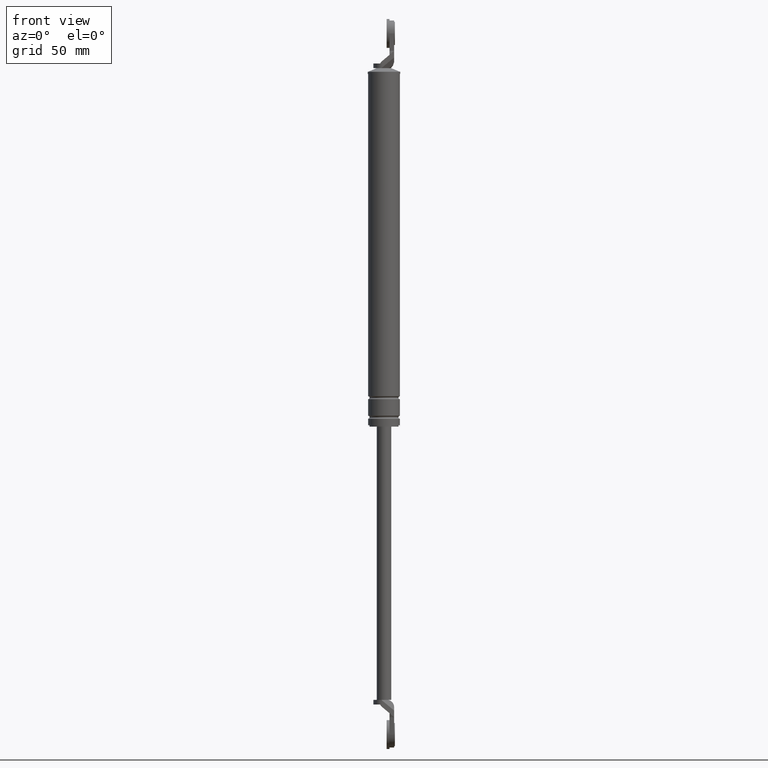
[diagram: clean part render]
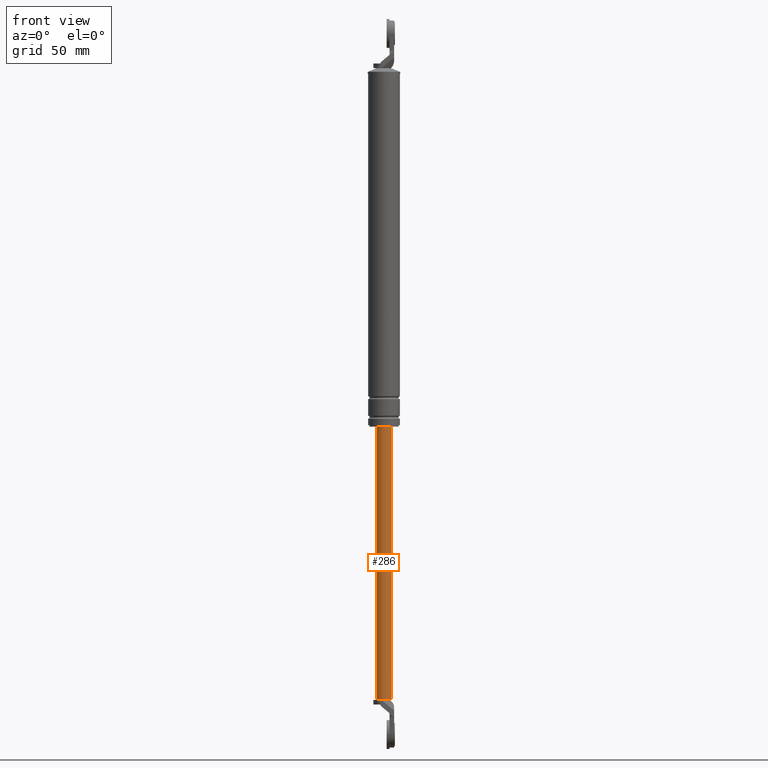
[diagram: same view with one face highlighted and labeled with its STEP entity id]
A machine part, front view. The second image highlights one B-rep face of the part: STEP entity #286.
In plain terms, the highlighted cylindrical surface (edge-blend (fillet) strip) has radius 5 mm, axis along (0, 0, 1).
Its self-contained STEP definition (entity closure, byte-faithful):
#286=ADVANCED_FACE('',(#1119),#1118,.T.);
#1118=CYLINDRICAL_SURFACE('',#1778,5.00000000000E+000);
#1119=FACE_OUTER_BOUND('',#1779,.T.);
#1775=CARTESIAN_POINT('',(0.00000000000E+000,3.58204186421E-014,0.00000000000E+000));
#1776=DIRECTION('',(-0.00000000000E+000,-0.00000000000E+000,1.00000000000E+000));
#1777=DIRECTION('',(1.00000000000E+000,0.00000000000E+000,0.00000000000E+000));
#1778=AXIS2_PLACEMENT_3D('',#1775,#1776,#1777);
#1779=EDGE_LOOP('',(#2175,#2176,#2177,#2178,#2179));
#2175=ORIENTED_EDGE('',*,*,#2364,.F.);
#2176=ORIENTED_EDGE('',*,*,#2363,.F.);
#2177=ORIENTED_EDGE('',*,*,#2378,.T.);
#2178=ORIENTED_EDGE('',*,*,#2373,.F.);
#2179=ORIENTED_EDGE('',*,*,#2379,.F.);
#2363=EDGE_CURVE('',#3594,#3581,#3601,.T.);
#2364=EDGE_CURVE('',#3581,#3607,#3608,.T.);
#2373=EDGE_CURVE('',#3664,#3665,#3666,.T.);
#2378=EDGE_CURVE('',#3594,#3665,#3696,.T.);
#2379=EDGE_CURVE('',#3607,#3664,#3702,.T.);
#3581=VERTEX_POINT('',#4440);
#3594=VERTEX_POINT('',#4448);
#3601=CIRCLE('',#4456,5.00000000000E+000);
#3607=VERTEX_POINT('',#4457);
#3608=CIRCLE('',#4461,5.00000000000E+000);
#3664=VERTEX_POINT('',#4492);
#3665=VERTEX_POINT('',#4493);
#3666=CIRCLE('',#4497,5.00000000000E+000);
#3696=(BOUNDED_CURVE() B_SPLINE_CURVE(1,(#4510,#4511),.UNSPECIFIED.,.F.,.F.) B_SPLINE_CURVE_WITH_KNOTS((2,2),(4.78468900547E-002,9.52153110211E-001),.UNSPECIFIED.) CURVE() GEOMETRIC_REPRESENTATION_ITEM() RATIONAL_B_SPLINE_CURVE((1.00000000000E+000,1.00000000000E+000)) REPRESENTATION_ITEM('') );
#3702=(BOUNDED_CURVE() B_SPLINE_CURVE(1,(#4512,#4513),.UNSPECIFIED.,.F.,.F.) B_SPLINE_CURVE_WITH_KNOTS((2,2),(4.78468899522E-002,9.52153110048E-001),.UNSPECIFIED.) CURVE() GEOMETRIC_REPRESENTATION_ITEM() RATIONAL_B_SPLINE_CURVE((7.50000000000E-001,7.50000000000E-001)) REPRESENTATION_ITEM('') );
#4440=CARTESIAN_POINT('',(2.00000000000E+000,-4.58257569496E+000,-3.48000015000E+002));
#4448=CARTESIAN_POINT('',(5.00000000000E+000,1.01515834226E-011,-3.48000015000E+002));
#4453=CARTESIAN_POINT('',(0.00000000000E+000,3.58204186421E-014,-3.48000015000E+002));
#4454=DIRECTION('',(0.00000000000E+000,0.00000000000E+000,-1.00000000000E+000));
#4455=DIRECTION('',(4.00000000000E-001,9.16515138991E-001,0.00000000000E+000));
#4456=AXIS2_PLACEMENT_3D('',#4453,#4454,#4455);
#4457=CARTESIAN_POINT('',(-5.00000000000E+000,8.97827335911E-007,-3.48000015000E+002));
#4458=CARTESIAN_POINT('',(0.00000000000E+000,3.58204186421E-014,-3.48000015000E+002));
#4459=DIRECTION('',(0.00000000000E+000,0.00000000000E+000,-1.00000000000E+000));
#4460=DIRECTION('',(1.00000000000E+000,-0.00000000000E+000,-0.00000000000E+000));
#4461=AXIS2_PLACEMENT_3D('',#4458,#4459,#4460);
#4492=CARTESIAN_POINT('',(-5.00000000000E+000,3.58204186421E-014,-1.59000015000E+002));
#4493=CARTESIAN_POINT('',(5.00000000000E+000,3.61192557345E-014,-1.59000015000E+002));
#4494=CARTESIAN_POINT('',(0.00000000000E+000,3.58204186421E-014,-1.59000015000E+002));
#4495=DIRECTION('',(0.00000000000E+000,0.00000000000E+000,1.00000000000E+000));
#4496=DIRECTION('',(-1.00000000000E+000,-1.22460635382E-016,0.00000000000E+000));
#4497=AXIS2_PLACEMENT_3D('',#4494,#4495,#4496);
#4510=CARTESIAN_POINT('',(5.00000000000E+000,3.58204186421E-014,-3.48000014979E+002));
#4511=CARTESIAN_POINT('',(5.00000000000E+000,3.58204186421E-014,-1.59000014966E+002));
#4512=CARTESIAN_POINT('',(-5.00000000000E+000,3.55271367880E-014,-3.48000015000E+002));
#4513=CARTESIAN_POINT('',(-5.00000000000E+000,3.55271367880E-014,-1.59000015000E+002));